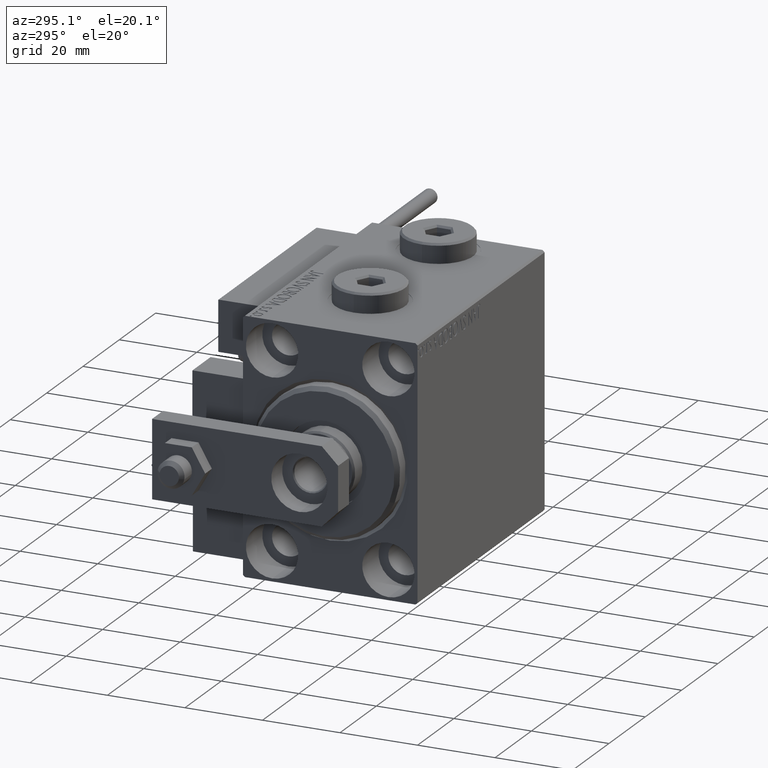
[diagram: clean part render]
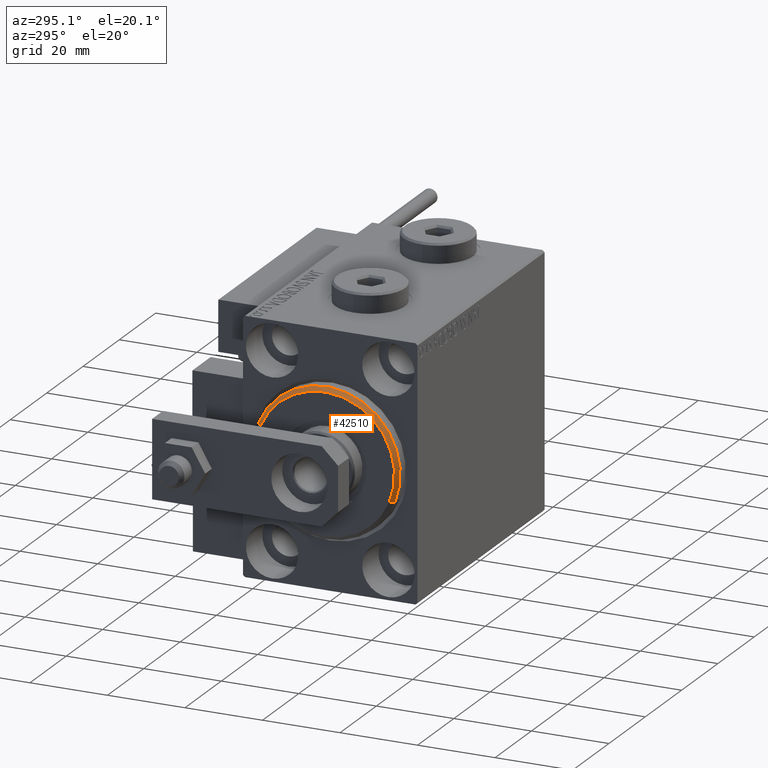
[diagram: same view with one face highlighted and labeled with its STEP entity id]
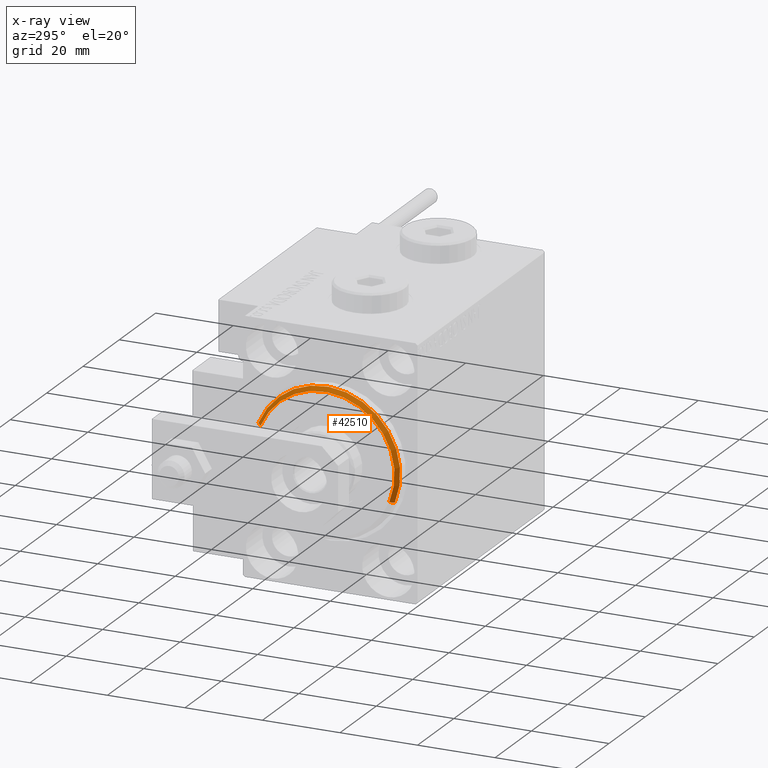
[diagram: x-ray of the same camera — body ghosted, the highlighted face saturated]
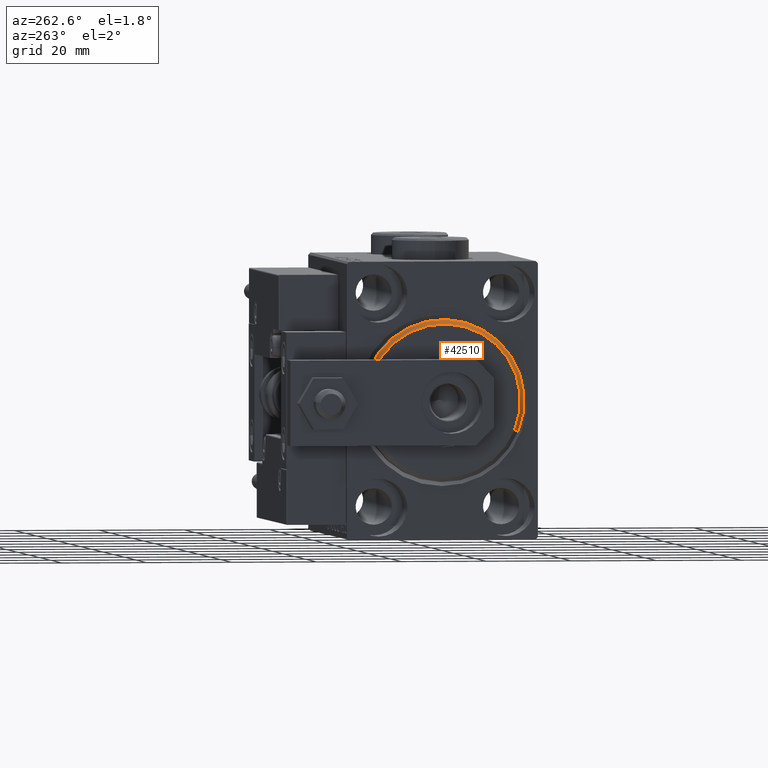
[diagram: same view with one face highlighted and labeled with its STEP entity id]
A machine part, auxiliary view. The second image highlights one B-rep face of the part: STEP entity #42510.
The next image is the same camera in x-ray: the body ghosted, the highlighted face saturated — about 0% of this face is hidden behind the body in this view.
A second angle (auxiliary view) of the same face is appended — the face is thin or edge-on in the first view.
In plain terms, the highlighted conical surface has half-angle 45 deg.
Its self-contained STEP definition (entity closure, byte-faithful):
#33 = CARTESIAN_POINT ( 'NONE',  ( 3.000000000000000000, 0.000000000000000000, 17.99999999999999645 ) ) ;
#89 = LINE ( 'NONE', #31863, #15095 ) ;
#1089 = DIRECTION ( 'NONE',  ( -0.7071067811865487940, 0.000000000000000000, 0.7071067811865463515 ) ) ;
#3032 = CIRCLE ( 'NONE', #16364, 19.00000000000000000 ) ;
#4666 = ORIENTED_EDGE ( 'NONE', *, *, #48316, .T. ) ;
#5423 = ORIENTED_EDGE ( 'NONE', *, *, #14114, .F. ) ;
#8270 = DIRECTION ( 'NONE',  ( 0.000000000000000000, 0.000000000000000000, -1.000000000000000000 ) ) ;
#11205 = CONICAL_SURFACE ( 'NONE', #40326, 17.99999999999999645, 0.7853981633974466137 ) ;
#12530 = CARTESIAN_POINT ( 'NONE',  ( 3.000000000000000000, 0.000000000000000000, 0.000000000000000000 ) ) ;
#12646 = AXIS2_PLACEMENT_3D ( 'NONE', #22387, #41952, #17210 ) ;
#13058 = EDGE_CURVE ( 'NONE', #18145, #32644, #89, .T. ) ;
#13572 = CARTESIAN_POINT ( 'NONE',  ( 3.000000000000000000, 0.000000000000000000, 17.99999999999999645 ) ) ;
#14114 = EDGE_CURVE ( 'NONE', #41701, #18145, #34264, .T. ) ;
#15095 = VECTOR ( 'NONE', #32387, 1000.000000000000000 ) ;
#15913 = DIRECTION ( 'NONE',  ( 0.000000000000000000, 0.000000000000000000, 1.000000000000000000 ) ) ;
#16364 = AXIS2_PLACEMENT_3D ( 'NONE', #47888, #47381, #8270 ) ;
#16958 = ORIENTED_EDGE ( 'NONE', *, *, #13058, .F. ) ;
#17051 = CARTESIAN_POINT ( 'NONE',  ( 1.999999999999992228, 2.326828918379970970E-15, -19.00000000000000000 ) ) ;
#17210 = DIRECTION ( 'NONE',  ( 0.000000000000000000, 0.000000000000000000, -1.000000000000000000 ) ) ;
#18145 = VERTEX_POINT ( 'NONE', #19143 ) ;
#19143 = CARTESIAN_POINT ( 'NONE',  ( 3.000000000000000000, 2.265596578422603002E-15, -17.99999999999999645 ) ) ;
#19319 = DIRECTION ( 'NONE',  ( -1.000000000000000000, 0.000000000000000000, 0.000000000000000000 ) ) ;
#22387 = CARTESIAN_POINT ( 'NONE',  ( 3.000000000000000000, 0.000000000000000000, 0.000000000000000000 ) ) ;
#22895 = VECTOR ( 'NONE', #1089, 1000.000000000000000 ) ;
#27804 = VERTEX_POINT ( 'NONE', #28136 ) ;
#27905 = FACE_OUTER_BOUND ( 'NONE', #41951, .T. ) ;
#28136 = CARTESIAN_POINT ( 'NONE',  ( 1.999999999999992228, 0.000000000000000000, 19.00000000000000000 ) ) ;
#31863 = CARTESIAN_POINT ( 'NONE',  ( 3.000000000000000000, 2.204364238465235033E-15, -17.99999999999999645 ) ) ;
#32387 = DIRECTION ( 'NONE',  ( -0.7071067811865487940, 8.659560562354918067E-17, -0.7071067811865463515 ) ) ;
#32644 = VERTEX_POINT ( 'NONE', #17051 ) ;
#34264 = CIRCLE ( 'NONE', #12646, 17.99999999999999645 ) ;
#35995 = ORIENTED_EDGE ( 'NONE', *, *, #51110, .F. ) ;
#40326 = AXIS2_PLACEMENT_3D ( 'NONE', #12530, #19319, #15913 ) ;
#40683 = LINE ( 'NONE', #13572, #22895 ) ;
#41701 = VERTEX_POINT ( 'NONE', #33 ) ;
#41951 = EDGE_LOOP ( 'NONE', ( #16958, #5423, #4666, #35995 ) ) ;
#41952 = DIRECTION ( 'NONE',  ( 1.000000000000000000, -0.000000000000000000, 0.000000000000000000 ) ) ;
#42510 = ADVANCED_FACE ( 'NONE', ( #27905 ), #11205, .T. ) ;
#47381 = DIRECTION ( 'NONE',  ( -1.000000000000000000, 0.000000000000000000, 0.000000000000000000 ) ) ;
#47888 = CARTESIAN_POINT ( 'NONE',  ( 1.999999999999992228, 0.000000000000000000, 0.000000000000000000 ) ) ;
#48316 = EDGE_CURVE ( 'NONE', #41701, #27804, #40683, .T. ) ;
#51110 = EDGE_CURVE ( 'NONE', #32644, #27804, #3032, .T. ) ;